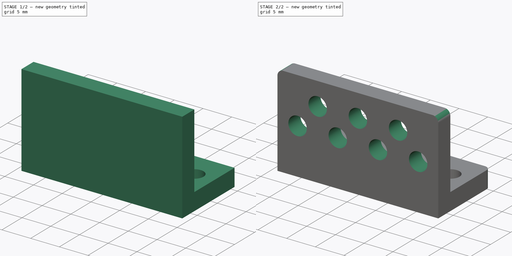
[diagram: build sequence overview — one tinted view per stage of 2, left to right]
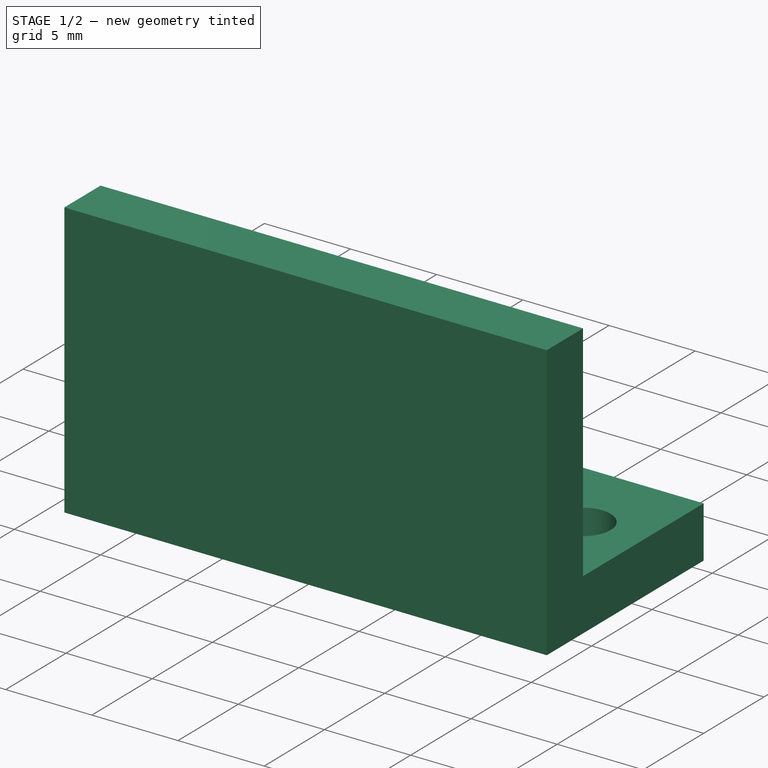
[diagram: stage 1 of 2 — iso view after this stage's code; geometry added in this stage tinted green]
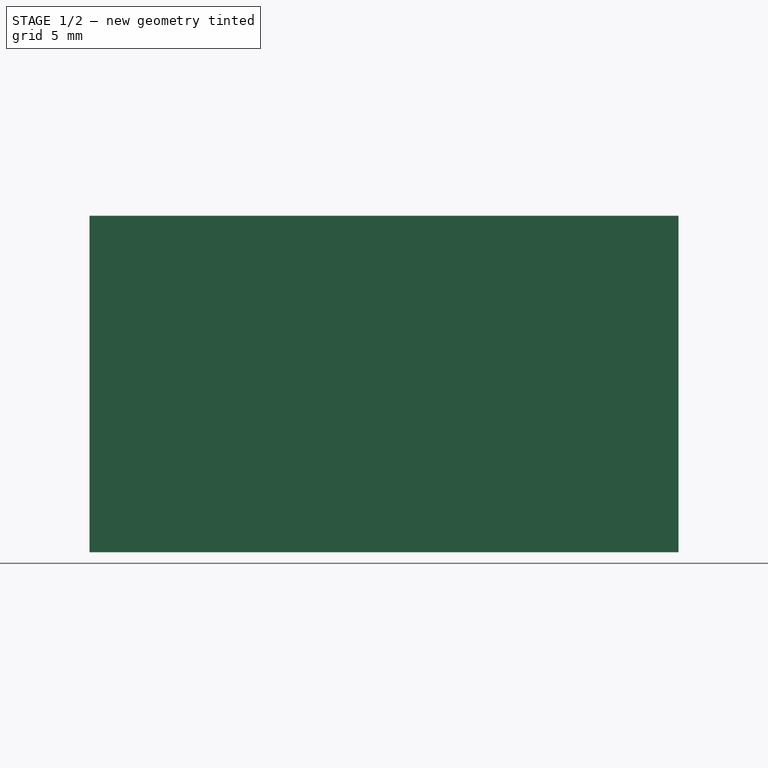
[diagram: stage 1 of 2 — front view after this stage's code; geometry added in this stage tinted green]
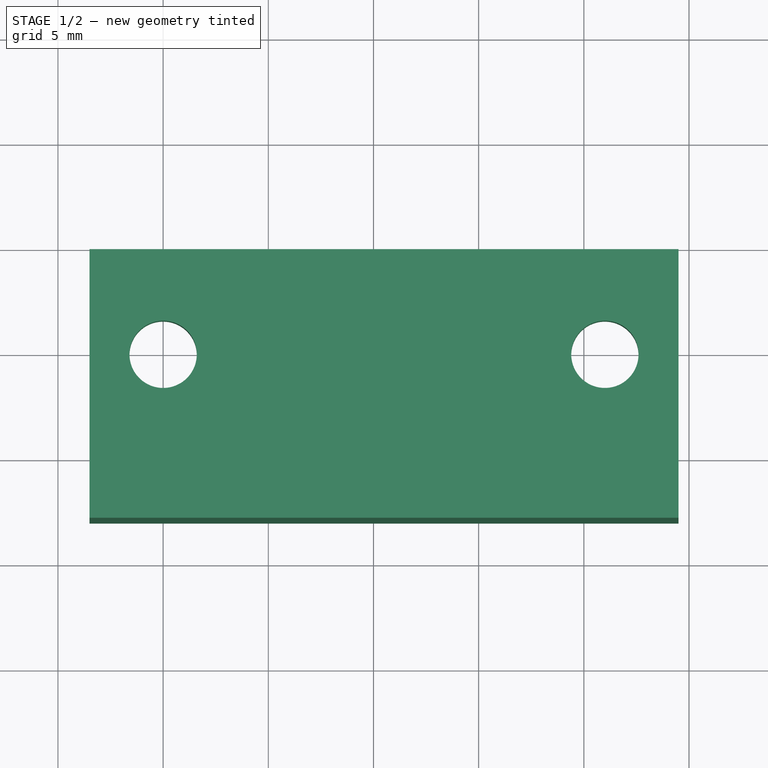
[diagram: stage 1 of 2 — top view after this stage's code; geometry added in this stage tinted green]
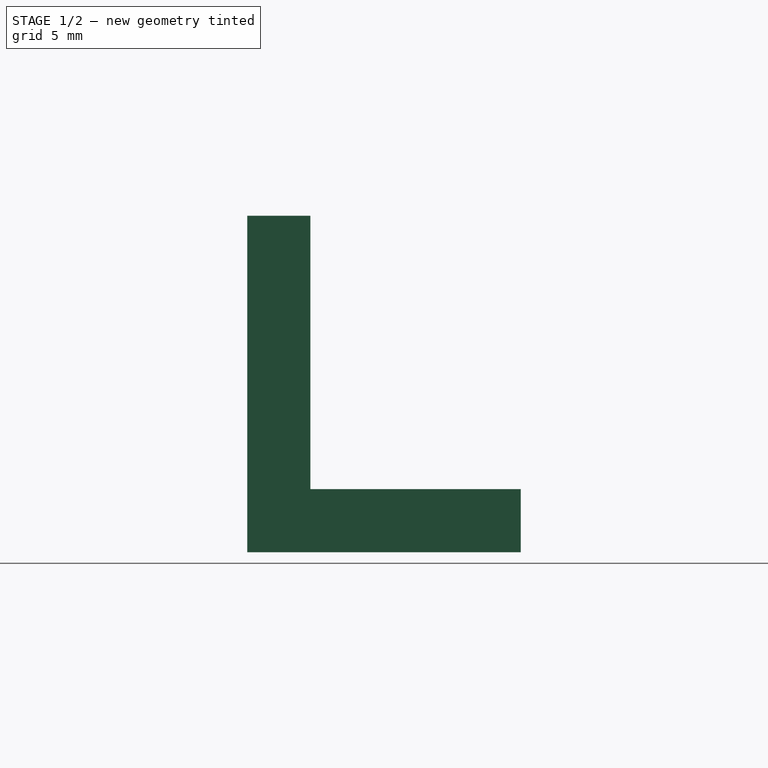
[diagram: stage 1 of 2 — right view after this stage's code; geometry added in this stage tinted green]
FCSTD DOCUMENT  (FreeCAD 0.19R24276 (Git))
Label: Spring_holder_part_2
License: All rights reserved
LicenseURL: http://en.wikipedia.org/wiki/All_rights_reserved
objects: Sketcher::SketchObject×3, PartDesign::Pad×2, PartDesign::Pocket×1, PartDesign::Fillet×1, PartDesign::Body×1
note: 12 computed .brp shape members not serialized (recipe doc carries the construction recipe); baked Part::Feature solids carry a one-line shape summary decoded from their .brp

FEATURE [Sketcher::SketchObject] Sketch
  FullyConstrained = true
  MapMode = 5
  Support = -> [XY_Plane]
  sketch-geometry (6):
    g0: Circle CenterX=0 CenterY=0 CenterZ=0 NormalX=0 NormalY=0 NormalZ=1 AngleXU=0 Radius=1.6
    g1: Circle CenterX=21 CenterY=0 CenterZ=0 NormalX=0 NormalY=0 NormalZ=1 AngleXU=0 Radius=1.6
    g2: LineSegment StartX=-3.5 StartY=5 StartZ=0 EndX=24.5 EndY=5 EndZ=0
    g3: LineSegment StartX=24.5 StartY=5 StartZ=0 EndX=24.5 EndY=-8 EndZ=0
    g4: LineSegment StartX=24.5 StartY=-8 StartZ=0 EndX=-3.5 EndY=-8 EndZ=0
    g5: LineSegment StartX=-3.5 StartY=-8 StartZ=0 EndX=-3.5 EndY=5 EndZ=0
  constraints (17):
    c: Coincident(g0,g-1)
    c: PointOnObject(g1,g-1)
    c: DistanceX(g-1,g1) = 21
    c: Diameter(g0) = 3.2
    c: Equal(g0,g1)
    c: Coincident(g2,g3)
    c: Coincident(g3,g4)
    c: Coincident(g4,g5)
    c: Coincident(g5,g2)
    c: Horizontal(g2)
    c: Horizontal(g4)
    c: Vertical(g3)
    c: Vertical(g5)
    c: DistanceX(g4,g4) = 28
    c: DistanceX(g4,g-1) = 3.5
    c: DistanceY(g3,g1) = 8
    c: DistanceY(g3,g2) = 13
FEATURE [PartDesign::Pad] Pad
  Direction = (1,1,1)
  Length = 3
  Length2 = 100
  Profile = -> Sketch
  Type = 0
FEATURE [Sketcher::SketchObject] Sketch001
  FullyConstrained = true
  MapMode = 5
  Placement = pos=(0,0,3) rot=(0,0,1;0rad)
  Support = -> [Pad]
  sketch-geometry (4):
    g0: LineSegment StartX=-3.5 StartY=-8 StartZ=0 EndX=24.5 EndY=-8 EndZ=0
    g1: LineSegment StartX=24.5 StartY=-8 StartZ=0 EndX=24.5 EndY=-5 EndZ=0
    g2: LineSegment StartX=24.5 StartY=-5 StartZ=0 EndX=-3.5 EndY=-5 EndZ=0
    g3: LineSegment StartX=-3.5 StartY=-5 StartZ=0 EndX=-3.5 EndY=-8 EndZ=0
  constraints (12):
    c: Coincident(g0,g1)
    c: Coincident(g1,g2)
    c: Coincident(g2,g3)
    c: Coincident(g3,g0)
    c: Horizontal(g0)
    c: Horizontal(g2)
    c: Vertical(g1)
    c: Vertical(g3)
    c: DistanceX(g0,g0) = 28
    c: DistanceX(g0,g-1) = 3.5
    c: DistanceY(g0,g-1) = 8
    c: DistanceY(g1,g1) = 3
FEATURE [PartDesign::Pad] Pad001
  BaseFeature = -> Pad
  Direction = (1,1,1)
  Length = 13
  Length2 = 100
  Profile = -> Sketch001
  Type = 0
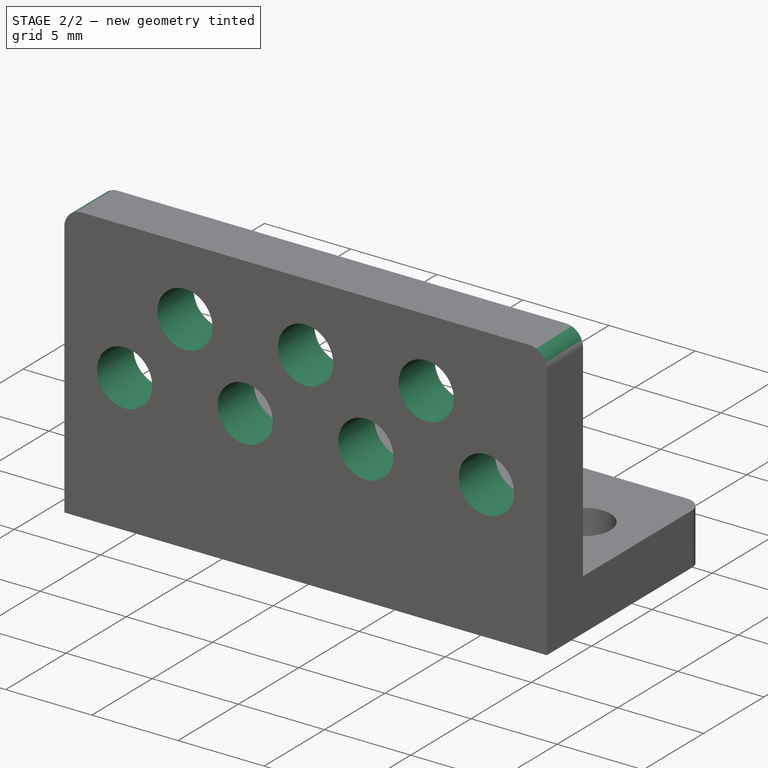
[diagram: stage 2 of 2 — iso view after this stage's code; geometry added in this stage tinted green]
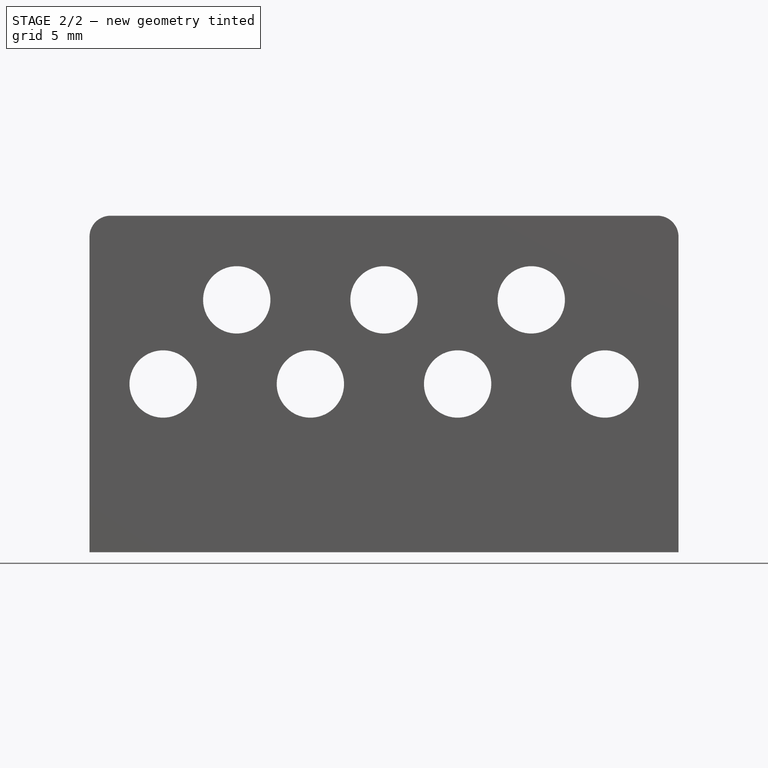
[diagram: stage 2 of 2 — front view after this stage's code; geometry added in this stage tinted green]
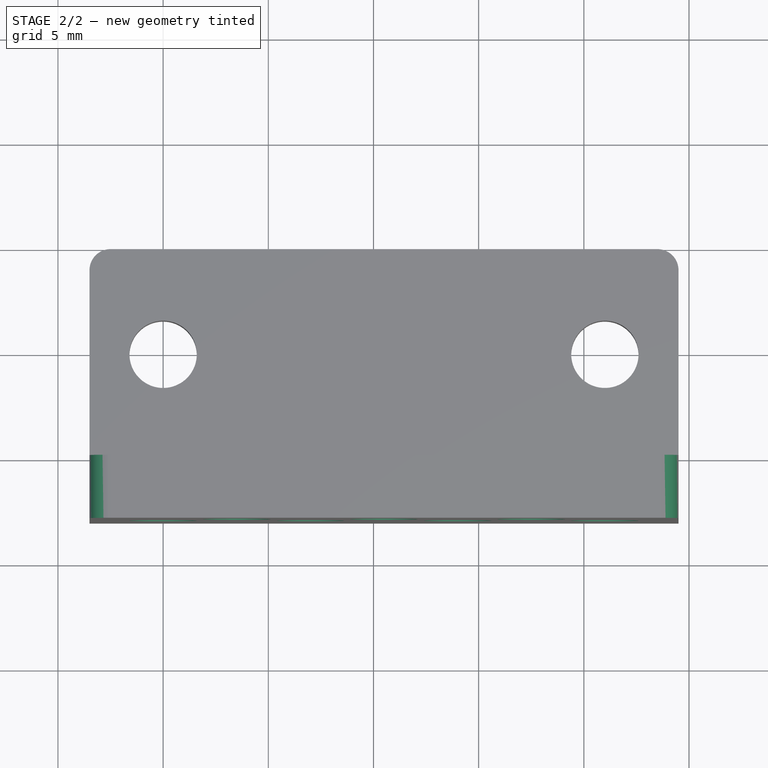
[diagram: stage 2 of 2 — top view after this stage's code; geometry added in this stage tinted green]
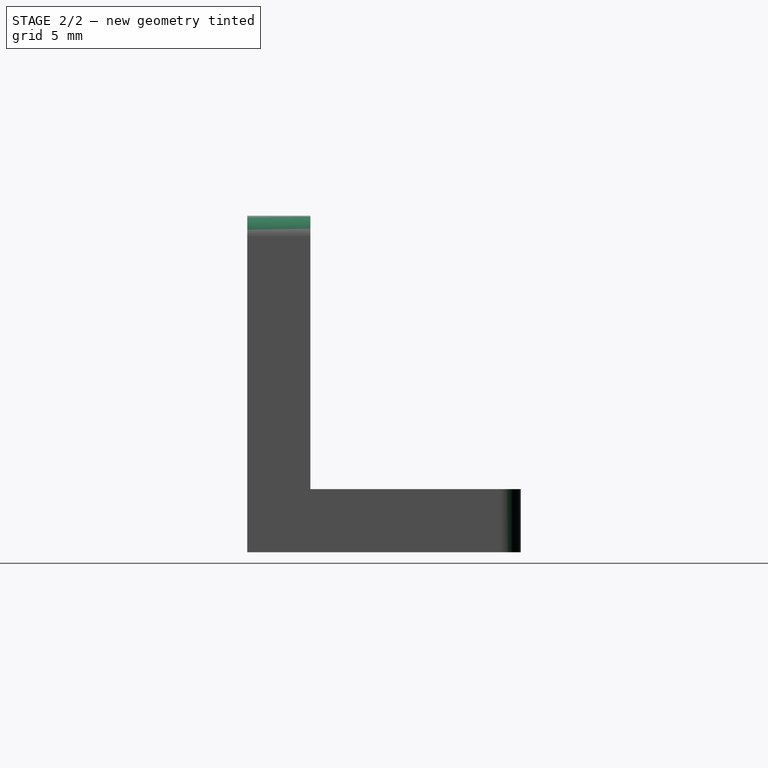
[diagram: stage 2 of 2 — right view after this stage's code; geometry added in this stage tinted green]
FEATURE [Sketcher::SketchObject] Sketch002
  FullyConstrained = true
  MapMode = 5
  Placement = pos=(0,-5,0) rot=(0,0.707107,0.707107;3.14159rad)
  Support = -> [Pad001]
  sketch-geometry (12):
    g0: Circle CenterX=-21 CenterY=8 CenterZ=0 NormalX=0 NormalY=0 NormalZ=1 AngleXU=0 Radius=1.6
    g1: Circle CenterX=-17.5 CenterY=12 CenterZ=0 NormalX=0 NormalY=0 NormalZ=1 AngleXU=0 Radius=1.6
    g2: Circle CenterX=-14 CenterY=8 CenterZ=0 NormalX=0 NormalY=0 NormalZ=1 AngleXU=0 Radius=1.6
    g3: Circle CenterX=-10.5 CenterY=12 CenterZ=0 NormalX=0 NormalY=0 NormalZ=1 AngleXU=0 Radius=1.6
    g4: Circle CenterX=-7 CenterY=8 CenterZ=0 NormalX=0 NormalY=0 NormalZ=1 AngleXU=0 Radius=1.6
    g5: Circle CenterX=-3.5 CenterY=12 CenterZ=0 NormalX=0 NormalY=0 NormalZ=1 AngleXU=0 Radius=1.6
    g6: LineSegment StartX=-24.5 StartY=16 StartZ=0 EndX=3.5 EndY=16 EndZ=0
    g7: LineSegment StartX=3.5 StartY=16 StartZ=0 EndX=3.5 EndY=3 EndZ=0
    g8: LineSegment StartX=3.5 StartY=3 StartZ=0 EndX=-24.5 EndY=3 EndZ=0
    g9: LineSegment StartX=-24.5 StartY=3 StartZ=0 EndX=-24.5 EndY=16 EndZ=0
    g10: LineSegment StartX=-10.5 StartY=16 StartZ=0 EndX=-10.5 EndY=8 EndZ=0
    g11: Circle CenterX=1e-16 CenterY=8 CenterZ=0 NormalX=0 NormalY=0 NormalZ=1 AngleXU=0 Radius=1.6
  constraints (35):
    c: Horizontal(g1,g3)
    c: Horizontal(g3,g5)
    c: Horizontal(g0,g2)
    c: Horizontal(g2,g4)
    c: Coincident(g6,g7)
    c: Coincident(g7,g8)
    c: Coincident(g8,g9)
    c: Coincident(g9,g6)
    c: Horizontal(g6)
    c: Horizontal(g8)
    c: Vertical(g7)
    c: Vertical(g9)
    c: DistanceX(g6,g6) = 28
    c: DistanceY(g7,g7) = 13
    c: DistanceY(g-1,g7) = 3
    c: Vertical(g10)
    c: Symmetric(g6,g6,g10)
    c: Symmetric(g2,g4,g10)
    c: DistanceX(g10,g4) = 3.5
    c: DistanceX(g-1,g7) = 3.5
    c: Equal(g4,g11)
    c: Horizontal(g4,g11)
    c: DistanceX(g4,g11) = 7
    c: DistanceX(g0,g2) = 7
    c: DistanceY(g7,g11) = 5
    c: DistanceY(g5,g6) = 4
    c: DistanceX(g5,g11) = 3.5
    c: Vertical(g10,g3)
    c: DistanceX(g1,g2) = 3.5
    c: Diameter(g11) = 3.2
    c: Equal(g2,g4)
    c: Equal(g4,g0)
    c: Equal(g0,g1)
    c: Equal(g1,g3)
    c: Equal(g3,g5)
FEATURE [PartDesign::Pocket] Pocket
  BaseFeature = -> Pad001
  Length = 5
  Length2 = 100
  Profile = -> Sketch002
  Type = 1
FEATURE [PartDesign::Fillet] Fillet
  Base = -> Pocket [Edge25,Edge22,Edge1,Edge2]
  BaseFeature = -> Pocket
  Radius = 1
  SupportTransform = false
FEATURE [PartDesign::Body] Body
  Group = -> [Sketch,Pad,Sketch001,Pad001,Sketch002,Pocket,Fillet]
  Origin = -> Origin
  Tip = -> Fillet
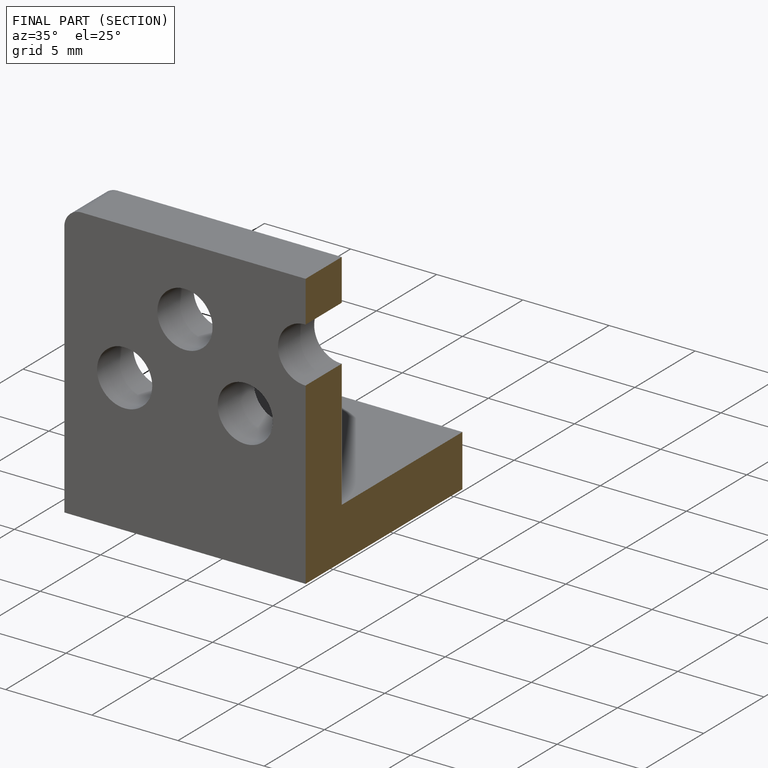
[diagram: finished part — half-section view (interior)]
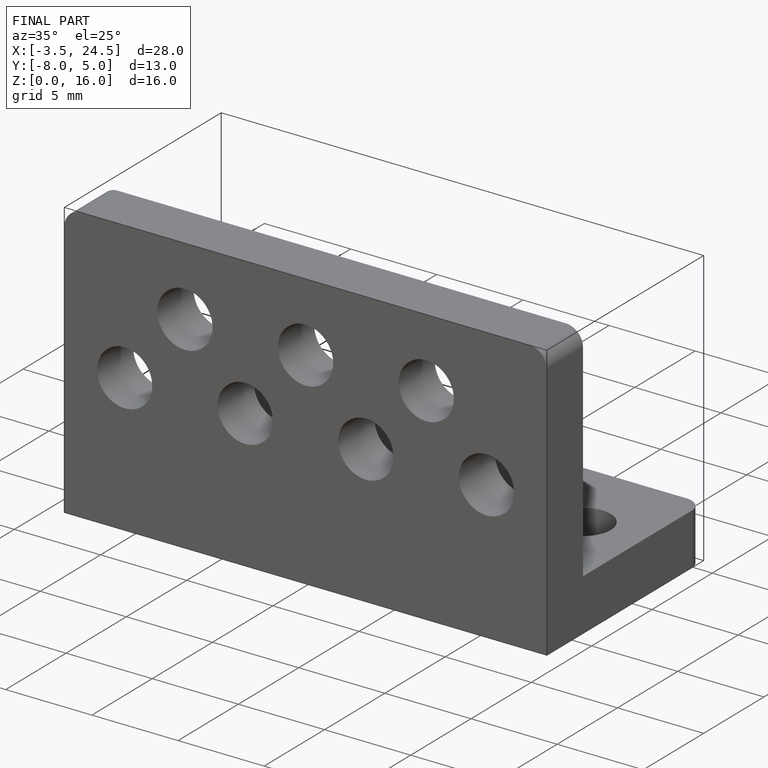
[diagram: finished part — iso view with bounding-box wireframe]
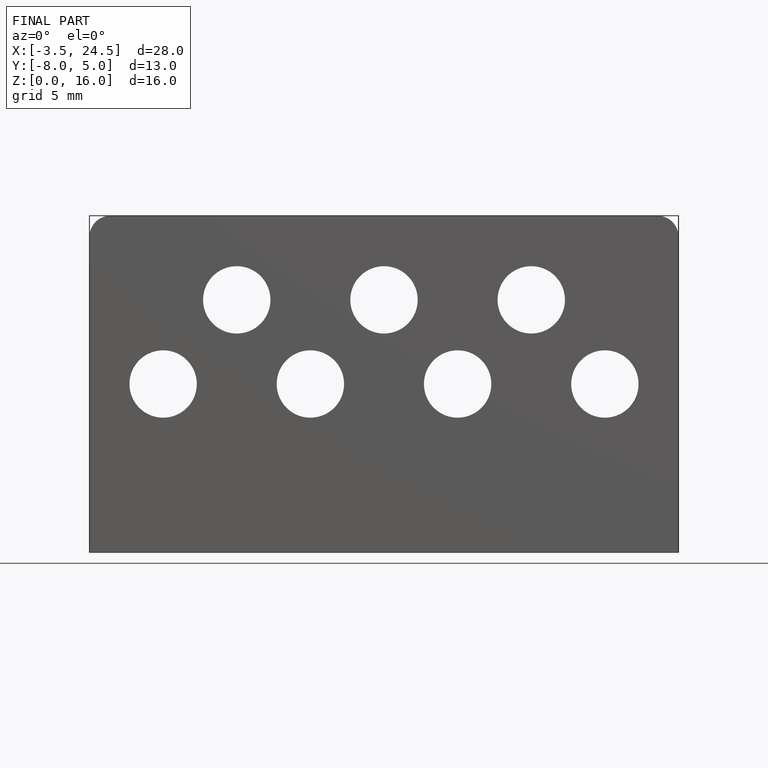
[diagram: finished part — front view with bounding-box wireframe]
